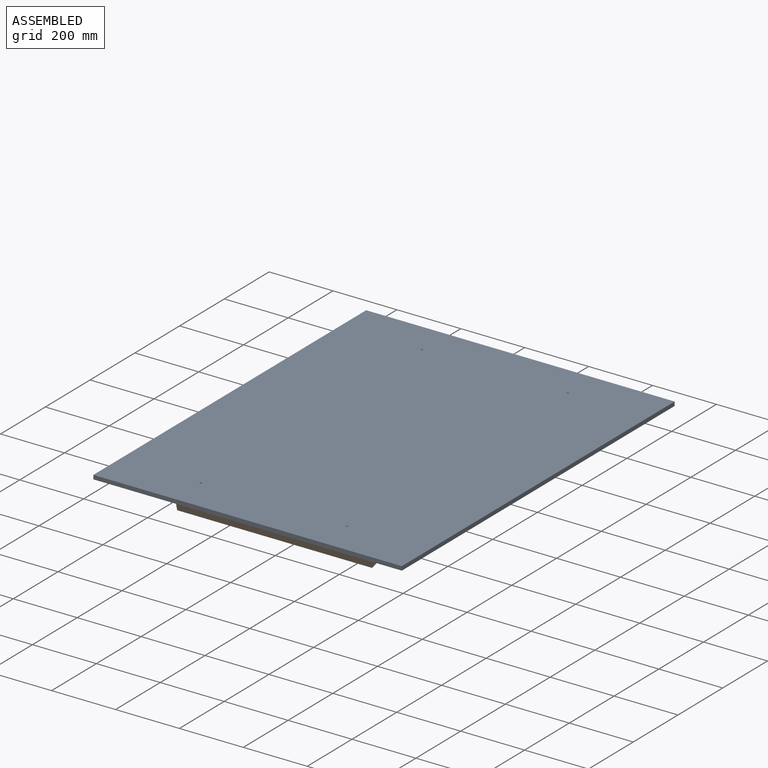
[diagram: assembled view]
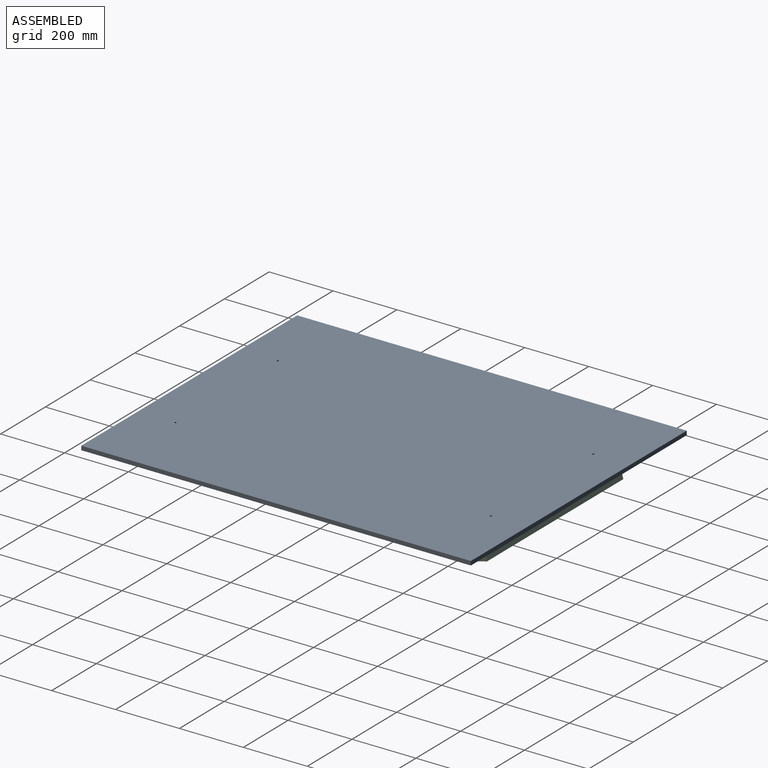
[diagram: assembled view, second angle]
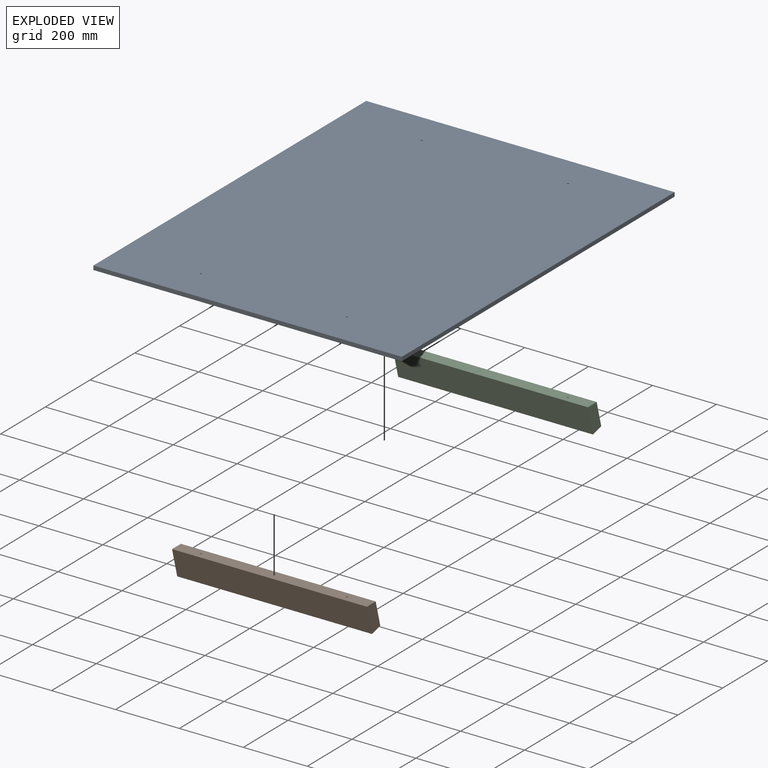
[diagram: exploded view]
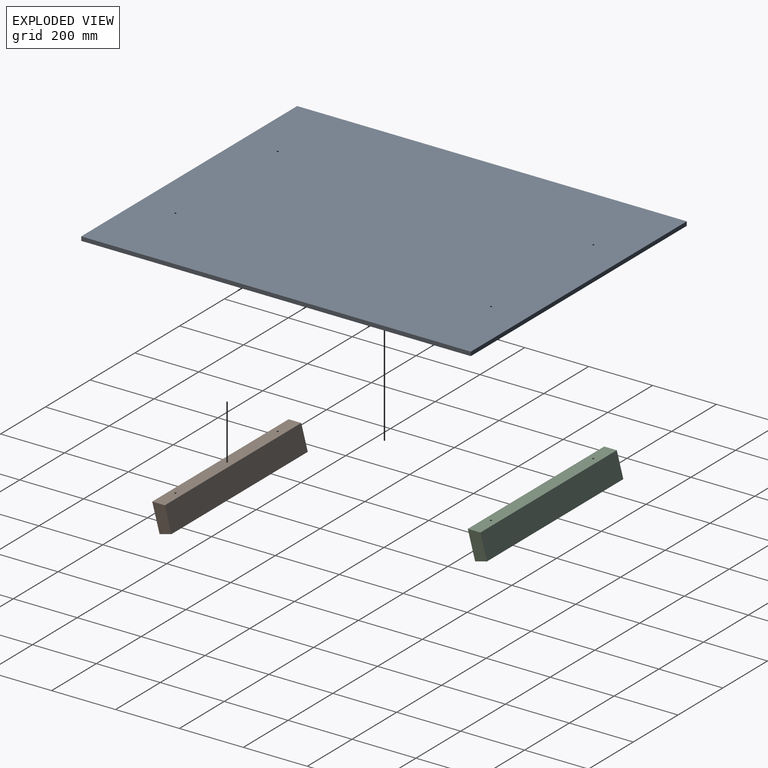
[diagram: exploded view, second angle]
ASSEMBLY  parts=3 mates=6
PART A: 10 faces, bbox 965.2x1219.2x12.7 mm
  f0: plane 965.2x12.7mm, normal (0,-1,0), area 12258mm2, adj f1,f3,f4,f5
  f1: plane 1219.2x12.7mm, normal (1,0,0), area 15483.8mm2, adj f0,f2,f4,f5
  f2: plane 965.2x12.7mm, normal (0,1,0), area 12258mm2, adj f1,f3,f4,f5
  f3: plane 1219.2x12.7mm, normal (-1,0,0), area 15483.8mm2, adj f0,f2,f4,f5
  f4: plane 1219.2x965.2mm, normal (0,0,1), area 1176645.2mm2, adj f0,f1,f2,f3,f6,f7,f8,f9
  f5: plane 1219.2x965.2mm, normal (0,0,-1), area 1176645.2mm2, adj f0,f1,f2,f3,f6,f7,f8,f9
  f6: cylinder r=3.17mm len=12.7mm, axis (0,0,-1), area 253.4mm2, adj f4,f5
  f7: cylinder r=3.17mm len=12.7mm, axis (0,0,-1), area 253.4mm2, adj f4,f5
  f8: cylinder r=3.17mm len=12.7mm, axis (0,0,-1), area 253.4mm2, adj f4,f5
  f9: cylinder r=3.17mm len=12.7mm, axis (0,0,-1), area 253.4mm2, adj f4,f5
PART B: 10 faces, bbox 38.1x609.6x89.2 mm
  f0: plane 609.6x38.1mm, normal (0.01,0,-1), area 23225.8mm2, adj f1,f3,f4,f5
  f1: plane 609.6x88.9mm, normal (1,0,0), area 54193.4mm2, adj f0,f2,f4,f5
  f2: plane 609.6x38.1mm, normal (-0.26,0,0.97), area 23981.5mm2, adj f1,f3,f4,f5,f6,f8
  f3: plane 609.6x78.96mm, normal (-1,0,0), area 48136.6mm2, adj f0,f2,f4,f5
  f4: plane 89.18x38.1mm, normal (0,-1,0), area 3197.7mm2, adj f0,f1,f2,f3
  f5: plane 89.18x38.1mm, normal (0,1,0), area 3197.7mm2, adj f0,f1,f2,f3
  f6: cylinder r=3.17mm len=26.18mm, axis (-0.26,0,0.97), area 506.7mm2, adj f2,f7
  f7: plane 6.35x6.13mm, normal (-0.26,0,0.97), area 31.7mm2, adj f6
  f8: cylinder r=3.17mm len=26.18mm, axis (-0.26,0,0.97), area 506.7mm2, adj f2,f9
  f9: plane 6.35x6.13mm, normal (-0.26,0,0.97), area 31.7mm2, adj f8
PART C: same geometry as B
PLACE A at identity fixed
PLACE B rot(axis=(0.13,0.13,-0.98),91deg) t=(304.8,-481.94,-38)mm
PLACE C rot(axis=(0.13,0.13,-0.98),91deg) t=(304.8,505.48,-38)mm
MATE cylindrical B.f8 <-> A.f6  axis (0,0,1) through (228.6,-492.13,0)mm
MATE cylindrical C.f8 <-> A.f8  axis (0,0,1) through (228.6,495.3,0)mm
MATE cylindrical B.f6 <-> A.f7  axis (0,0,1) through (-228.6,-492.13,0)mm
MATE planar C.f2 <-> A.f5  axis (0,0,1) through (0,495.3,0)mm
MATE cylindrical C.f6 <-> A.f9  axis (0,0,1) through (-228.6,495.3,0)mm
MATE planar B.f2 <-> A.f5  axis (0,0,1) through (0,-492.13,0)mm
